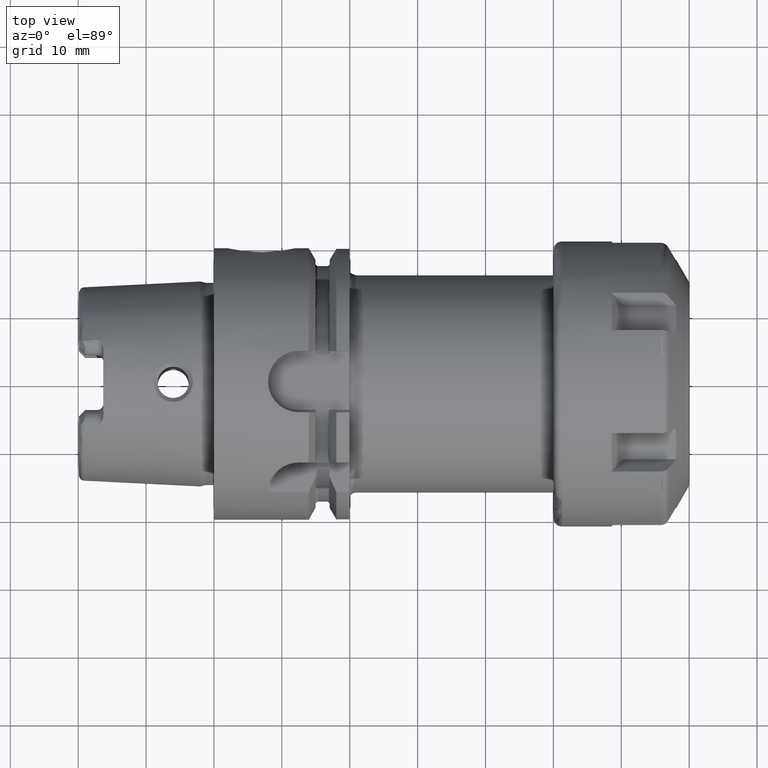
[diagram: clean part render]
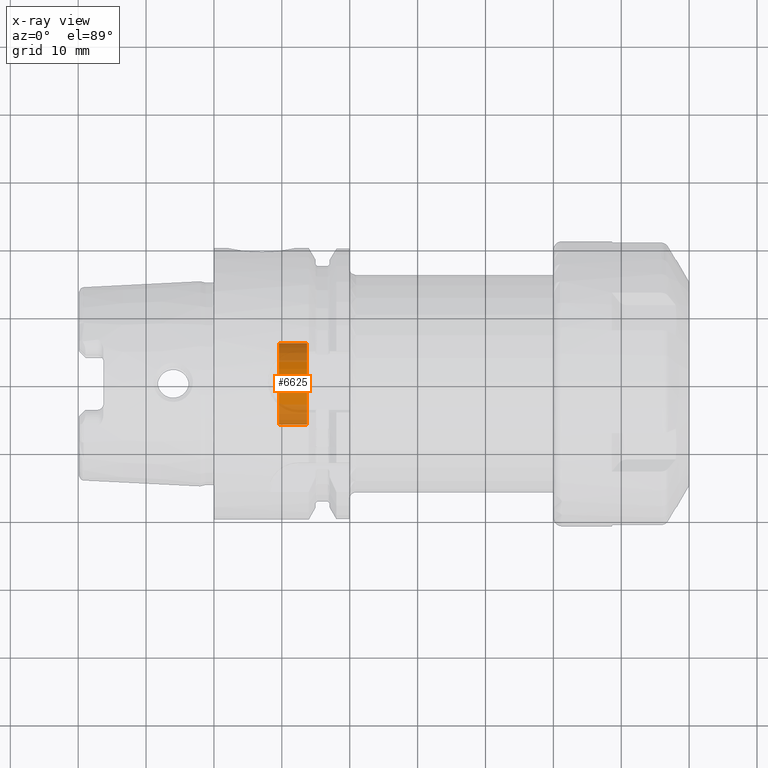
[diagram: x-ray — body ghosted, one internal face saturated and labeled with its STEP entity id]
A machine part, top view, then the same camera in x-ray: the body is ghosted and one INTERNAL B-rep face — a face not visible from any outside direction — is saturated and labeled: STEP entity #6625.
In plain terms, the highlighted cylindrical surface (partial cylindrical patch) has radius 6 mm, axis along (-1, 0, 0).
Its self-contained STEP definition (entity closure, byte-faithful):
#6570=DIRECTION('',(1.E0,0.E0,0.E0));
#6571=VECTOR('',#6570,4.1375E0);
#6572=CARTESIAN_POINT('',(9.5625E0,6.E0,0.E0));
#6573=LINE('',#6572,#6571);
#6574=CARTESIAN_POINT('',(9.5625E0,0.E0,0.E0));
#6575=DIRECTION('',(1.E0,0.E0,0.E0));
#6576=DIRECTION('',(0.E0,1.E0,0.E0));
#6577=AXIS2_PLACEMENT_3D('',#6574,#6575,#6576);
#6579=DIRECTION('',(1.E0,0.E0,0.E0));
#6580=VECTOR('',#6579,4.1375E0);
#6581=CARTESIAN_POINT('',(9.5625E0,-6.E0,0.E0));
#6582=LINE('',#6581,#6580);
#6583=CARTESIAN_POINT('',(1.37E1,0.E0,0.E0));
#6584=DIRECTION('',(-1.E0,0.E0,0.E0));
#6585=DIRECTION('',(0.E0,-1.E0,0.E0));
#6586=AXIS2_PLACEMENT_3D('',#6583,#6584,#6585);
#6588=CARTESIAN_POINT('',(9.5625E0,6.E0,0.E0));
#6589=CARTESIAN_POINT('',(1.37E1,6.E0,0.E0));
#6590=VERTEX_POINT('',#6588);
#6591=VERTEX_POINT('',#6589);
#6592=CARTESIAN_POINT('',(9.5625E0,-6.E0,0.E0));
#6593=CARTESIAN_POINT('',(1.37E1,-6.E0,0.E0));
#6594=VERTEX_POINT('',#6592);
#6595=VERTEX_POINT('',#6593);
#6612=CARTESIAN_POINT('',(1.851760861489E1,0.E0,0.E0));
#6613=DIRECTION('',(-1.E0,0.E0,0.E0));
#6614=DIRECTION('',(0.E0,1.E0,0.E0));
#6615=AXIS2_PLACEMENT_3D('',#6612,#6613,#6614);
#6616=CYLINDRICAL_SURFACE('',#6615,6.E0);
#6617=ORIENTED_EDGE('',*,*,#6601,.F.);
#6619=ORIENTED_EDGE('',*,*,#6618,.T.);
#6620=ORIENTED_EDGE('',*,*,#6605,.T.);
#6622=ORIENTED_EDGE('',*,*,#6621,.T.);
#6623=EDGE_LOOP('',(#6617,#6619,#6620,#6622));
#6624=FACE_OUTER_BOUND('',#6623,.F.);
#6625=ADVANCED_FACE('',(#6624),#6616,.F.);
#6578=CIRCLE('',#6577,6.E0);
#6587=CIRCLE('',#6586,6.E0);
#6601=EDGE_CURVE('',#6590,#6591,#6573,.T.);
#6605=EDGE_CURVE('',#6594,#6595,#6582,.T.);
#6618=EDGE_CURVE('',#6590,#6594,#6578,.T.);
#6621=EDGE_CURVE('',#6595,#6591,#6587,.T.);